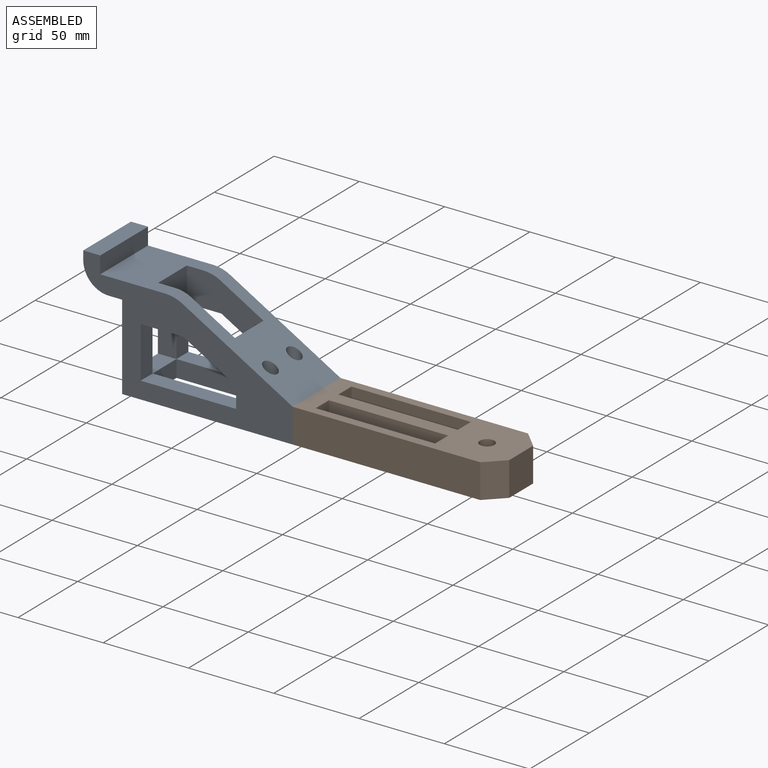
[diagram: assembled view]
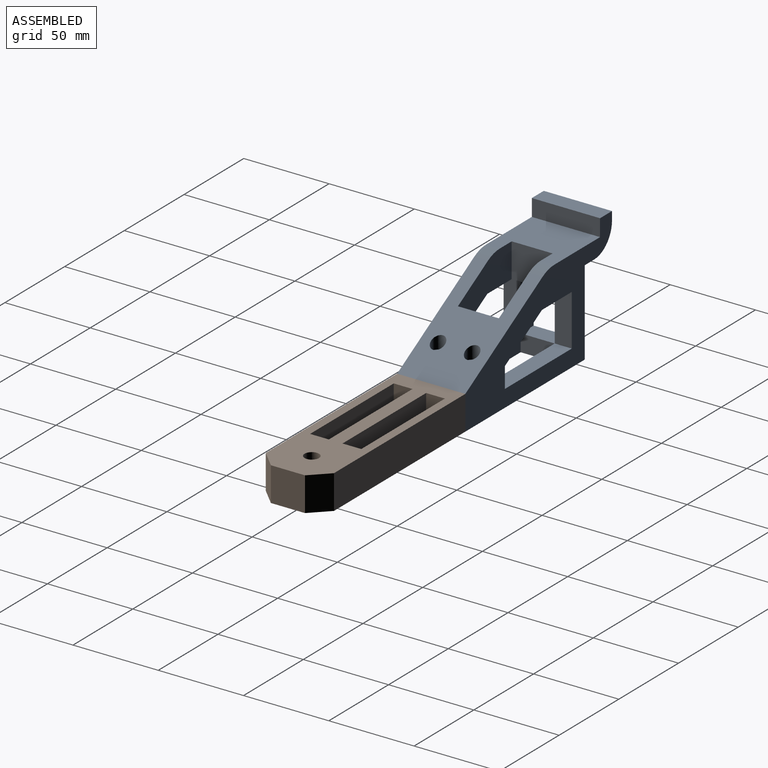
[diagram: assembled view, second angle]
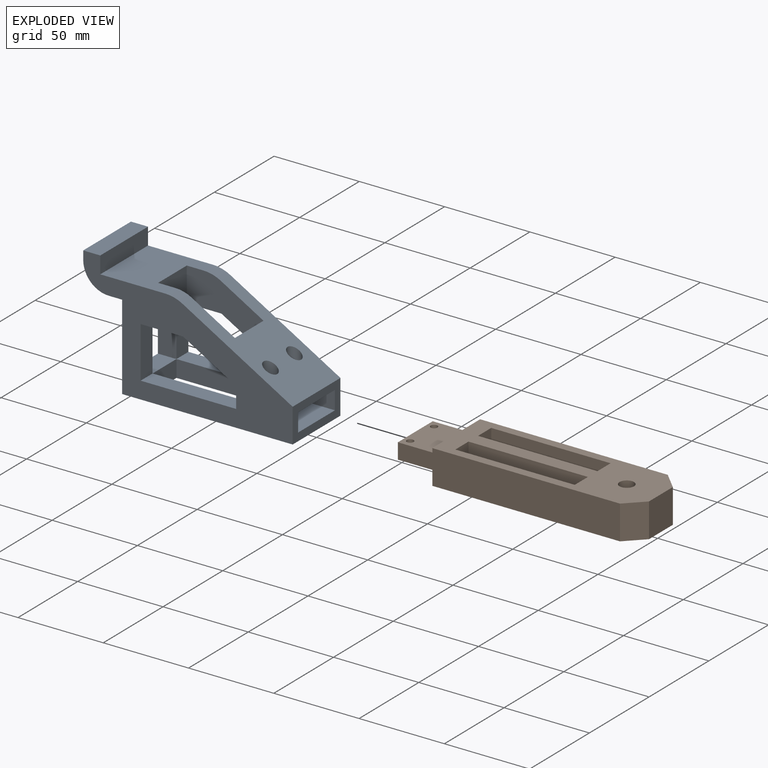
[diagram: exploded view]
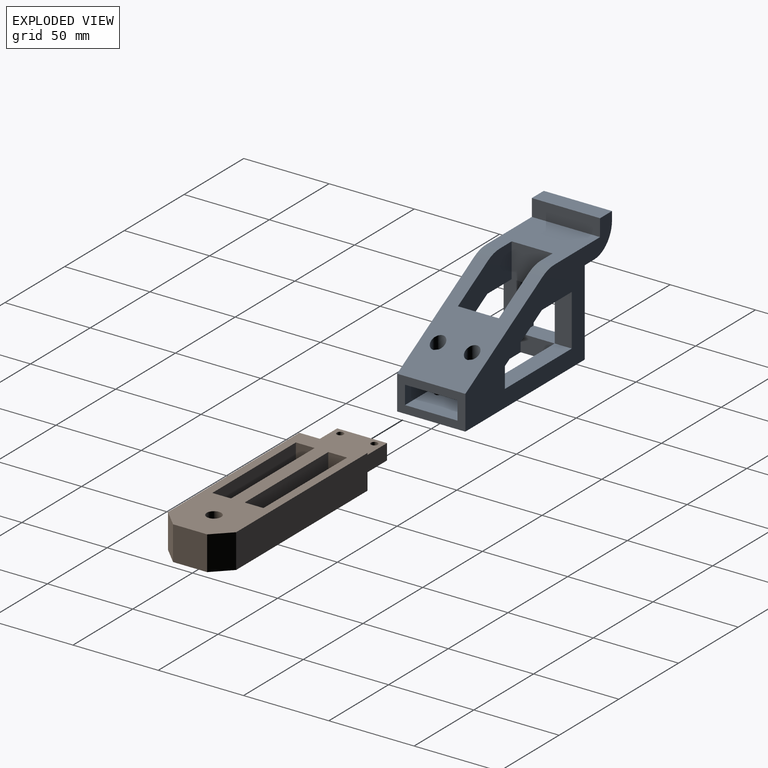
[diagram: exploded view, second angle]
ASSEMBLY  parts=2 mates=2
PART A: 44 faces, bbox 123.8x41x71 mm
  f0: cylinder r=2mm len=10.6mm, axis (0,0,-1), area 133.2mm2, adj f24,f42
  f1: cylinder r=2mm len=10.6mm, axis (0,0,-1), area 133.2mm2, adj f24,f40
  f2: plane 20x9.98mm, normal (1,0,0), area 199.6mm2, adj f11,f28,f29,f36
  f3: plane 30x10mm, normal (1,0,0), area 300mm2, adj f7,f10,f13,f37
  f4: plane 50x40mm, normal (-1,0,0), area 1400mm2, adj f7,f11,f12,f13,f18,f35,f36,f37
  f5: plane 65.61x40.97mm, normal (0.5,0,0.87), area 2172.8mm2, adj f9,f12,f13,f14,f30,f31,f32,f33
  f6: plane 40x38.16mm, normal (0,0,1), area 1289.7mm2, adj f9,f12,f13,f15,f30,f32,f33,f34
  f7: plane 40x35.85mm, normal (0,0,-1), area 728.6mm2, adj f3,f4,f8,f12,f13,f20,f32,f33
  f8: plane 40x31mm, normal (-0.5,0,-0.87), area 748.8mm2, adj f7,f12,f13,f22,f31,f32,f33
  f9: cylinder r=20mm len=10mm, axis (0,1,0), area 83.8mm2, adj f5,f6,f12,f32
  f10: plane 56x10mm, normal (0,0,1), area 560mm2, adj f3,f13,f22,f29
  f11: plane 100x40mm, normal (0,0,-1), area 2854.9mm2, adj f2,f4,f12,f13,f14,f22,f28,f29
  f12: plane 122.8x70mm, normal (0,-1,0), area 3489mm2, adj f4,f5,f6,f7,f8,f9,f11,f14
  f13: plane 122.8x70mm, normal (0,1,0), area 3489mm2, adj f3,f4,f5,f6,f7,f8,f10,f11
  f14: plane 40x20mm, normal (1,0,0), area 467.4mm2, adj f5,f11,f12,f13,f23,f24,f25,f26
  f15: plane 40x10mm, normal (1,0,0), area 400mm2, adj f6,f12,f13,f16
  f16: plane 40x10mm, normal (0,0,1), area 400mm2, adj f12,f13,f15,f17
  f17: plane 40x5mm, normal (-1,0,0), area 200mm2, adj f12,f13,f16,f19
  f18: plane 40x7.8mm, normal (0,0,-1), area 312mm2, adj f4,f12,f13,f19
  f19: cylinder r=15mm len=40mm, axis (0,1,0), area 942.5mm2, adj f12,f13,f17,f18
  f20: plane 30x10mm, normal (1,0,0), area 300mm2, adj f7,f12,f21,f35
  f21: plane 56x10mm, normal (0,0,1), area 560mm2, adj f12,f20,f22,f28
  f22: plane 40x22.08mm, normal (-1,0,0), area 683.7mm2, adj f8,f10,f11,f12,f13,f21,f28,f29
  f23: plane 25x10.8mm, normal (0,-1,0), area 270mm2, adj f14,f24,f26,f27
  f24: plane 30.8x25mm, normal (0,0,-1), area 744.9mm2, adj f0,f1,f14,f23,f25,f27
  f25: plane 25x10.8mm, normal (0,1,0), area 270mm2, adj f14,f24,f26,f27
  f26: plane 30.8x25mm, normal (0,0,1), area 744.9mm2, adj f14,f23,f25,f27,f38,f39
  f27: plane 30.8x10.8mm, normal (1,0,0), area 332.6mm2, adj f23,f24,f25,f26
  f28: plane 56x9.98mm, normal (0,1,0), area 559mm2, adj f2,f11,f21,f22
  f29: plane 56x9.98mm, normal (0,-1,0), area 559mm2, adj f2,f10,f11,f22
  f30: cylinder r=20mm len=10mm, axis (0,1,0), area 83.8mm2, adj f5,f6,f13,f33
  f31: plane 24x17.05mm, normal (-1,0,0), area 409.3mm2, adj f5,f8,f32,f33
  f32: plane 45x34.25mm, normal (0,1,0), area 817.6mm2, adj f5,f6,f7,f8,f9,f31,f34
  f33: plane 45x34.25mm, normal (0,-1,0), area 817.6mm2, adj f5,f6,f7,f8,f30,f31,f34
  f34: plane 24x20.02mm, normal (1,0,0), area 480.4mm2, adj f6,f7,f32,f33
  f35: plane 30x10.85mm, normal (0,1,0), area 325.6mm2, adj f4,f7,f20,f36
  f36: plane 20x10.85mm, normal (0,0,1), area 217.1mm2, adj f2,f4,f35,f37
  f37: plane 30x10.85mm, normal (0,-1,0), area 325.6mm2, adj f3,f4,f7,f36
  f38: cylinder r=2mm len=4.6mm, axis (0,0,-1), area 57.8mm2, adj f11,f26
  f39: cylinder r=2mm len=4.6mm, axis (0,0,-1), area 57.8mm2, adj f11,f26
  f40: plane 8x8mm, normal (0,0,1), area 37.7mm2, adj f1,f41
  f41: cylinder r=4mm len=8mm, axis (0,0,1), area 139.4mm2, adj f5,f40
  f42: plane 8x8mm, normal (0,0,1), area 37.7mm2, adj f0,f43
  f43: cylinder r=4mm len=8mm, axis (0,0,1), area 139.4mm2, adj f5,f42
PART B: 24 faces, bbox 144x40x20 mm
  f0: plane 120x40mm, normal (0,0,1), area 3103.3mm2, adj f2,f3,f4,f5,f13,f14,f15,f16
  f1: plane 120x40mm, normal (0,0,-1), area 3103.3mm2, adj f2,f3,f4,f5,f13,f14,f15,f16
  f2: plane 40x20mm, normal (-1,0,0), area 531.4mm2, adj f0,f1,f3,f4,f6,f7,f8,f9
  f3: plane 110x20mm, normal (0,1,0), area 2200mm2, adj f0,f1,f2,f14
  f4: plane 110x20mm, normal (0,-1,0), area 2200mm2, adj f0,f1,f2,f15
  f5: plane 20x20mm, normal (1,0,0), area 400mm2, adj f0,f1,f14,f15
  f6: plane 24x9.2mm, normal (0,1,0), area 220.8mm2, adj f2,f7,f9,f10
  f7: plane 29.2x24mm, normal (0,0,-1), area 675.7mm2, adj f2,f6,f8,f10,f11,f12
  f8: plane 24x9.2mm, normal (0,-1,0), area 220.8mm2, adj f2,f7,f9,f10
  f9: plane 29.2x24mm, normal (0,0,1), area 675.7mm2, adj f2,f6,f8,f10,f11,f12
  f10: plane 29.2x9.2mm, normal (-1,0,0), area 268.6mm2, adj f6,f7,f8,f9
  f11: cylinder r=2mm len=9.2mm, axis (0,0,-1), area 115.6mm2, adj f7,f9
  f12: cylinder r=2mm len=9.2mm, axis (0,0,-1), area 115.6mm2, adj f7,f9
  f13: cylinder r=4.25mm len=20mm, axis (0,0,1), area 534.1mm2, adj f0,f1
  f14: plane 20x10mm, normal (0.71,0.71,0), area 282.8mm2, adj f0,f1,f3,f5
  f15: plane 20x10mm, normal (0.71,-0.71,0), area 282.8mm2, adj f0,f1,f4,f5
  f16: plane 20x11mm, normal (1,0,0), area 220mm2, adj f0,f1,f17,f19
  f17: plane 70x20mm, normal (0,1,0), area 1400mm2, adj f0,f1,f16,f18
  f18: plane 20x11mm, normal (-1,0,0), area 220mm2, adj f0,f1,f17,f19
  f19: plane 70x20mm, normal (0,-1,0), area 1400mm2, adj f0,f1,f16,f18
  f20: plane 70x20mm, normal (0,-1,0), area 1400mm2, adj f0,f1,f21,f23
  f21: plane 20x11mm, normal (1,0,0), area 220mm2, adj f0,f1,f20,f22
  f22: plane 70x20mm, normal (0,1,0), area 1400mm2, adj f0,f1,f21,f23
  f23: plane 20x11mm, normal (-1,0,0), area 220mm2, adj f0,f1,f20,f22
PLACE A at identity fixed
PLACE B at identity
MATE slider B.f10 <-> A.f14  axis (-1,0,0) through (76,0,10)mm
MATE fastened B.f2 <-> A.f14  axis (-1,0,0) through (100,0,10)mm
